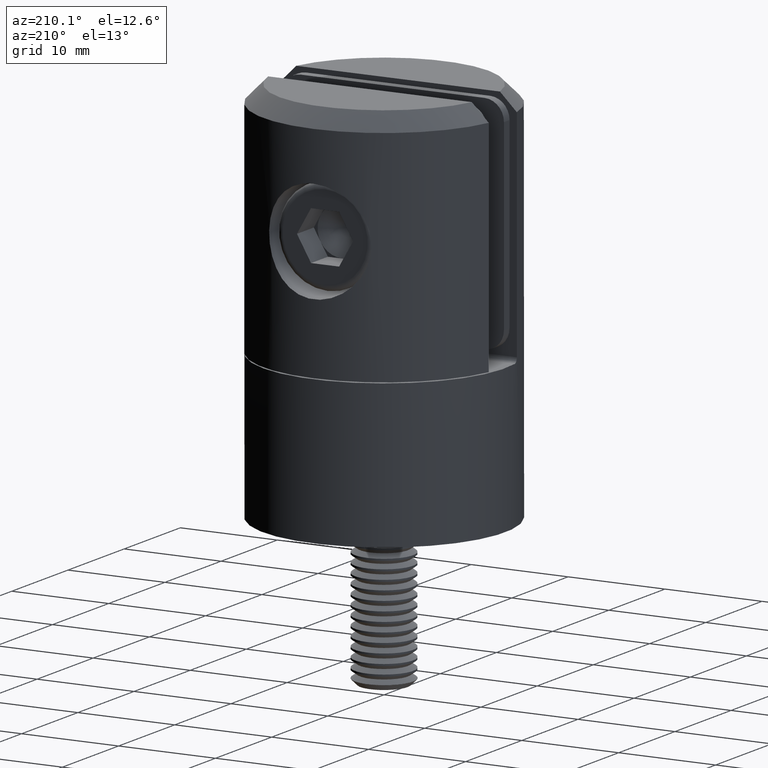
[diagram: clean part render]
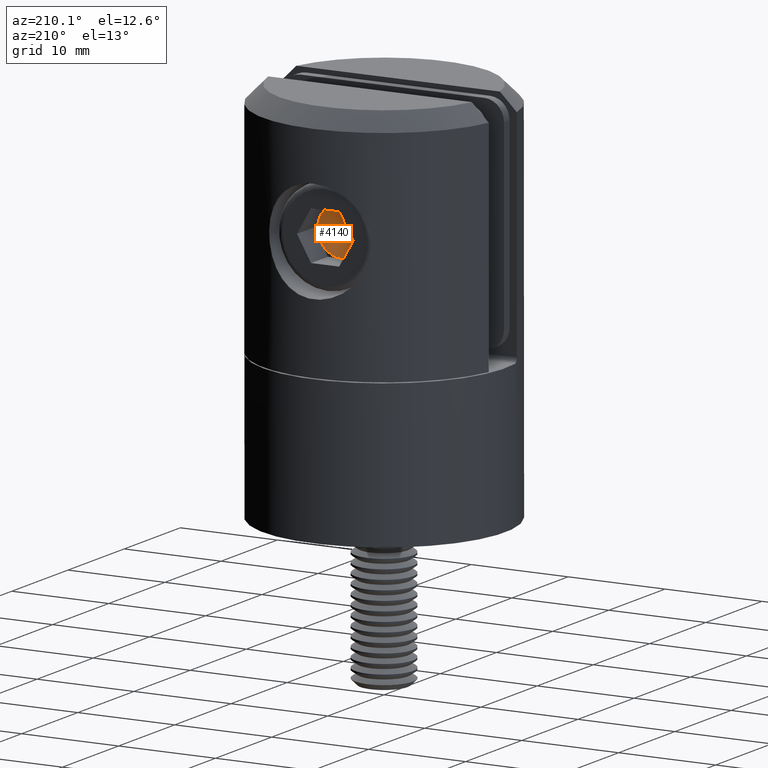
[diagram: same view with one face highlighted and labeled with its STEP entity id]
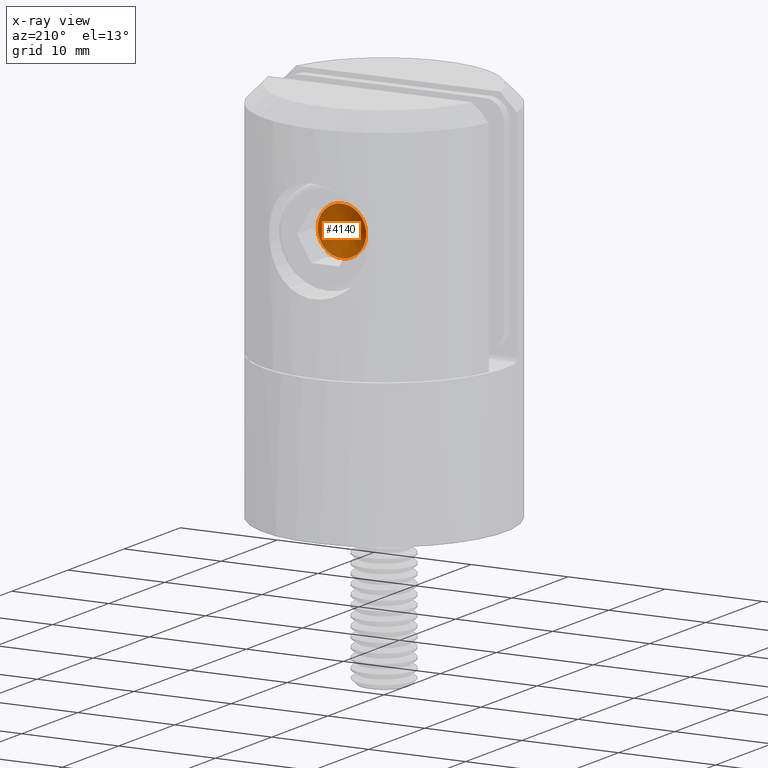
[diagram: x-ray of the same camera — body ghosted, the highlighted face saturated]
A machine part, auxiliary view. The second image highlights one B-rep face of the part: STEP entity #4140.
The next image is the same camera in x-ray: the body ghosted, the highlighted face saturated — about 0% of this face is hidden behind the body in this view.
In plain terms, the highlighted conical surface has half-angle 60 deg.
Its self-contained STEP definition (entity closure, byte-faithful):
#1190 = CARTESIAN_POINT ( 'NONE',  ( 3.000000000000000000, 3.380207847158607968E-15, 2.509999999999998899 ) ) ;
#1325 = AXIS2_PLACEMENT_3D ( 'NONE', #9064, #19510, #20953 ) ;
#1862 = CIRCLE ( 'NONE', #18843, 2.509999999999999787 ) ;
#1972 = EDGE_CURVE ( 'NONE', #15690, #16620, #12405, .T. ) ;
#2073 = ORIENTED_EDGE ( 'NONE', *, *, #18808, .T. ) ;
#2388 = ORIENTED_EDGE ( 'NONE', *, *, #3681, .T. ) ;
#3014 = ORIENTED_EDGE ( 'NONE', *, *, #4202, .T. ) ;
#3055 = CARTESIAN_POINT ( 'NONE',  ( 3.000000000000000000, 0.000000000000000000, 0.000000000000000000 ) ) ;
#3224 = CIRCLE ( 'NONE', #12626, 2.509999999999999787 ) ;
#3276 = DIRECTION ( 'NONE',  ( 0.000000000000000000, 0.000000000000000000, 1.000000000000000000 ) ) ;
#3681 = EDGE_CURVE ( 'NONE', #13507, #14498, #1862, .T. ) ;
#4140 = ADVANCED_FACE ( 'NONE', ( #19824 ), #10490, .F. ) ;
#4202 = EDGE_CURVE ( 'NONE', #11090, #15294, #3224, .T. ) ;
#4350 = EDGE_CURVE ( 'NONE', #15294, #13507, #6674, .T. ) ;
#5501 = CIRCLE ( 'NONE', #1325, 2.509999999999999787 ) ;
#5825 = DIRECTION ( 'NONE',  ( 0.000000000000000000, 0.000000000000000000, 1.000000000000000000 ) ) ;
#6674 = CIRCLE ( 'NONE', #9190, 2.509999999999999787 ) ;
#7394 = CARTESIAN_POINT ( 'NONE',  ( 3.000000000000000000, -2.173723763498943917, 1.255000000000005222 ) ) ;
#8190 = CARTESIAN_POINT ( 'NONE',  ( 3.000000000000000000, -3.004629197474320429E-15, -2.509999999999999787 ) ) ;
#8337 = CIRCLE ( 'NONE', #17278, 2.509999999999999787 ) ;
#8529 = DIRECTION ( 'NONE',  ( -1.000000000000000000, -0.000000000000000000, -0.000000000000000000 ) ) ;
#8644 = AXIS2_PLACEMENT_3D ( 'NONE', #20891, #13937, #18863 ) ;
#9064 = CARTESIAN_POINT ( 'NONE',  ( 3.000000000000000000, 0.000000000000000000, 0.000000000000000000 ) ) ;
#9190 = AXIS2_PLACEMENT_3D ( 'NONE', #18783, #8529, #20507 ) ;
#10019 = EDGE_LOOP ( 'NONE', ( #2073, #3014, #20561, #2388, #11530, #20159 ) ) ;
#10105 = DIRECTION ( 'NONE',  ( -1.000000000000000000, -0.000000000000000000, -0.000000000000000000 ) ) ;
#10490 = CONICAL_SURFACE ( 'NONE', #16058, 2.509999999999999787, 1.047197551196591636 ) ;
#11090 = VERTEX_POINT ( 'NONE', #18034 ) ;
#11515 = DIRECTION ( 'NONE',  ( 0.000000000000000000, 0.000000000000000000, 1.000000000000000000 ) ) ;
#11530 = ORIENTED_EDGE ( 'NONE', *, *, #16893, .T. ) ;
#11862 = DIRECTION ( 'NONE',  ( -1.000000000000000000, -0.000000000000000000, -0.000000000000000000 ) ) ;
#12405 = CIRCLE ( 'NONE', #8644, 2.509999999999999787 ) ;
#12626 = AXIS2_PLACEMENT_3D ( 'NONE', #13265, #15276, #3276 ) ;
#13265 = CARTESIAN_POINT ( 'NONE',  ( 3.000000000000000000, 0.000000000000000000, 0.000000000000000000 ) ) ;
#13507 = VERTEX_POINT ( 'NONE', #8190 ) ;
#13902 = CARTESIAN_POINT ( 'NONE',  ( 3.000000000000000000, 2.173723763498932815, -1.255000000000000782 ) ) ;
#13937 = DIRECTION ( 'NONE',  ( -1.000000000000000000, -0.000000000000000000, -0.000000000000000000 ) ) ;
#14498 = VERTEX_POINT ( 'NONE', #19170 ) ;
#15276 = DIRECTION ( 'NONE',  ( -1.000000000000000000, -0.000000000000000000, -0.000000000000000000 ) ) ;
#15294 = VERTEX_POINT ( 'NONE', #13902 ) ;
#15690 = VERTEX_POINT ( 'NONE', #7394 ) ;
#16058 = AXIS2_PLACEMENT_3D ( 'NONE', #3055, #10105, #11515 ) ;
#16620 = VERTEX_POINT ( 'NONE', #1190 ) ;
#16893 = EDGE_CURVE ( 'NONE', #14498, #15690, #5501, .T. ) ;
#17026 = CARTESIAN_POINT ( 'NONE',  ( 3.000000000000000000, 0.000000000000000000, 0.000000000000000000 ) ) ;
#17278 = AXIS2_PLACEMENT_3D ( 'NONE', #17026, #11862, #22229 ) ;
#17794 = DIRECTION ( 'NONE',  ( -1.000000000000000000, -0.000000000000000000, -0.000000000000000000 ) ) ;
#17936 = CARTESIAN_POINT ( 'NONE',  ( 3.000000000000000000, 0.000000000000000000, 0.000000000000000000 ) ) ;
#18034 = CARTESIAN_POINT ( 'NONE',  ( 3.000000000000000000, 2.173723763498937256, 1.254999999999993676 ) ) ;
#18783 = CARTESIAN_POINT ( 'NONE',  ( 3.000000000000000000, 0.000000000000000000, 0.000000000000000000 ) ) ;
#18808 = EDGE_CURVE ( 'NONE', #16620, #11090, #8337, .T. ) ;
#18843 = AXIS2_PLACEMENT_3D ( 'NONE', #17936, #17794, #5825 ) ;
#18863 = DIRECTION ( 'NONE',  ( 0.000000000000000000, 0.000000000000000000, 1.000000000000000000 ) ) ;
#19170 = CARTESIAN_POINT ( 'NONE',  ( 3.000000000000000000, -2.173723763498946138, -1.254999999999998783 ) ) ;
#19510 = DIRECTION ( 'NONE',  ( -1.000000000000000000, -0.000000000000000000, -0.000000000000000000 ) ) ;
#19824 = FACE_OUTER_BOUND ( 'NONE', #10019, .T. ) ;
#20159 = ORIENTED_EDGE ( 'NONE', *, *, #1972, .T. ) ;
#20507 = DIRECTION ( 'NONE',  ( 0.000000000000000000, 0.000000000000000000, 1.000000000000000000 ) ) ;
#20561 = ORIENTED_EDGE ( 'NONE', *, *, #4350, .T. ) ;
#20891 = CARTESIAN_POINT ( 'NONE',  ( 3.000000000000000000, 0.000000000000000000, 0.000000000000000000 ) ) ;
#20953 = DIRECTION ( 'NONE',  ( 0.000000000000000000, 0.000000000000000000, 1.000000000000000000 ) ) ;
#22229 = DIRECTION ( 'NONE',  ( 0.000000000000000000, 0.000000000000000000, 1.000000000000000000 ) ) ;